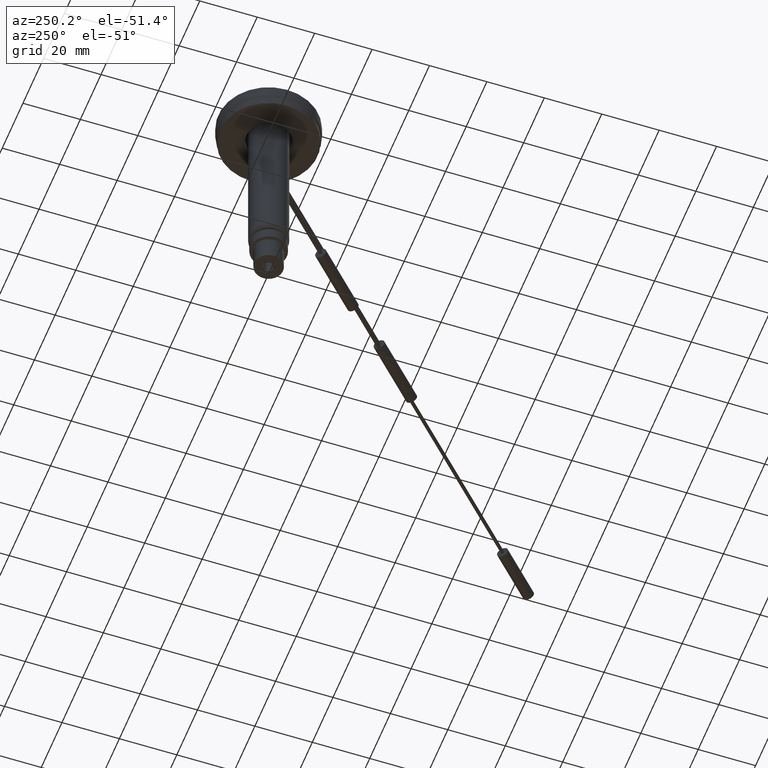
[diagram: clean part render]
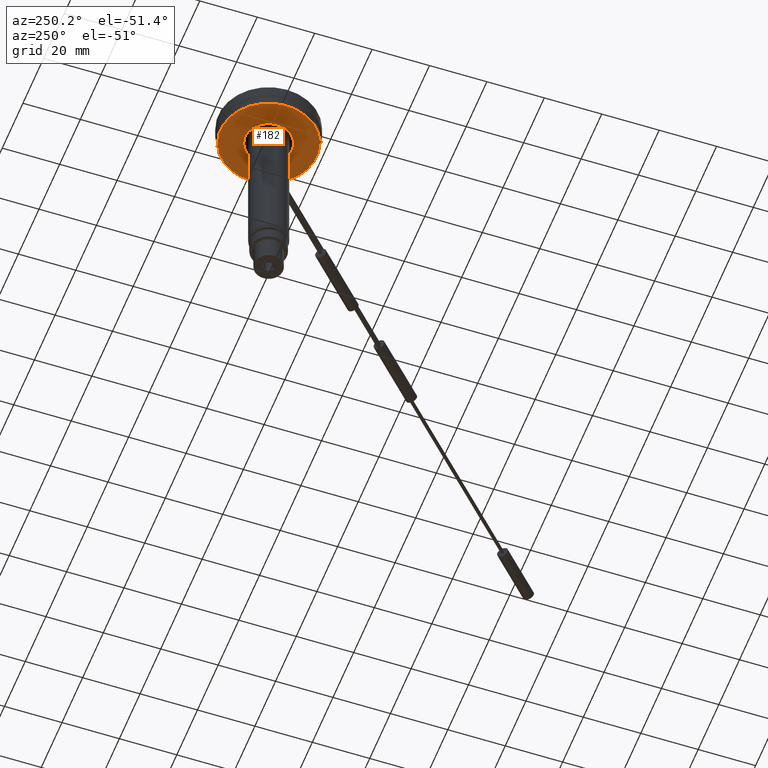
[diagram: same view with one face highlighted and labeled with its STEP entity id]
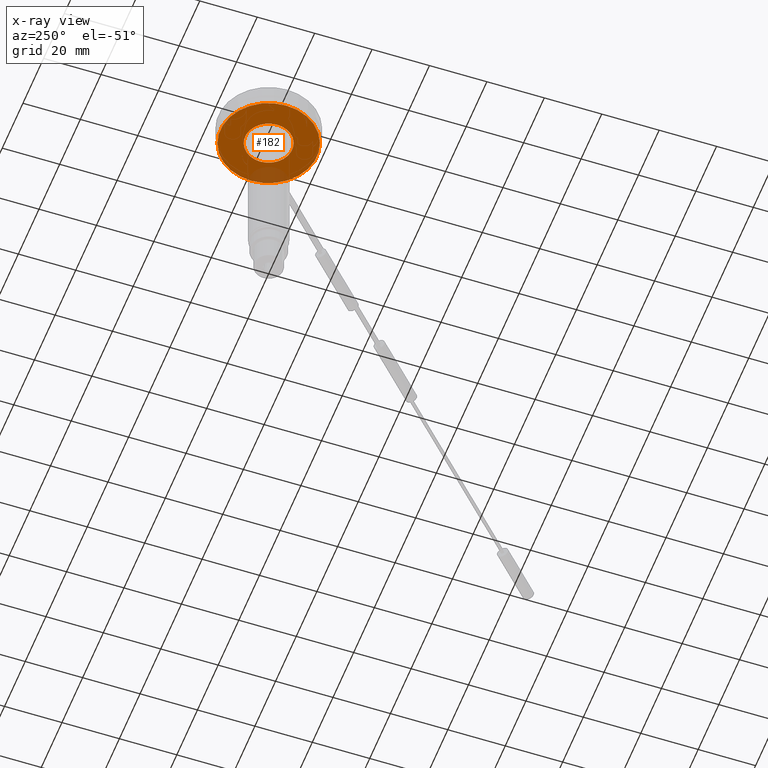
[diagram: x-ray of the same camera — body ghosted, the highlighted face saturated]
A machine part, auxiliary view. The second image highlights one B-rep face of the part: STEP entity #182.
The next image is the same camera in x-ray: the body ghosted, the highlighted face saturated — about 10% of this face is hidden behind the body in this view.
In plain terms, the highlighted planar face has unit normal (0, 0, -1).
Its self-contained STEP definition (entity closure, byte-faithful):
#77=PLANE('',#1123);
#182=ADVANCED_FACE('',(#402,#403),#77,.T.);
#308=CIRCLE('',#1121,16.8);
#309=CIRCLE('',#1122,8.2);
#402=FACE_BOUND('',#529,.T.);
#403=FACE_BOUND('',#530,.T.);
#529=EDGE_LOOP('',(#711));
#530=EDGE_LOOP('',(#712));
#711=ORIENTED_EDGE('',*,*,#965,.T.);
#712=ORIENTED_EDGE('',*,*,#966,.T.);
#867=VERTEX_POINT('',#1917);
#868=VERTEX_POINT('',#1919);
#965=EDGE_CURVE('',#867,#867,#308,.T.);
#966=EDGE_CURVE('',#868,#868,#309,.T.);
#1121=AXIS2_PLACEMENT_3D('',#1916,#1417,#1418);
#1122=AXIS2_PLACEMENT_3D('',#1918,#1419,#1420);
#1123=AXIS2_PLACEMENT_3D('',#1920,#1421,#1422);
#1417=DIRECTION('',(0.,0.,-1.));
#1418=DIRECTION('',(-1.,0.,0.));
#1419=DIRECTION('',(0.,0.,1.));
#1420=DIRECTION('',(-1.,0.,0.));
#1421=DIRECTION('',(0.,0.,-1.));
#1422=DIRECTION('',(-1.,0.,0.));
#1916=CARTESIAN_POINT('',(0.,0.,-13.0045993831955));
#1917=CARTESIAN_POINT('',(-16.8,0.,-13.0045993831955));
#1918=CARTESIAN_POINT('',(0.,0.,-13.0045993831955));
#1919=CARTESIAN_POINT('',(-8.2,0.,-13.0045993831955));
#1920=CARTESIAN_POINT('',(-17.,0.,-13.0045993831955));